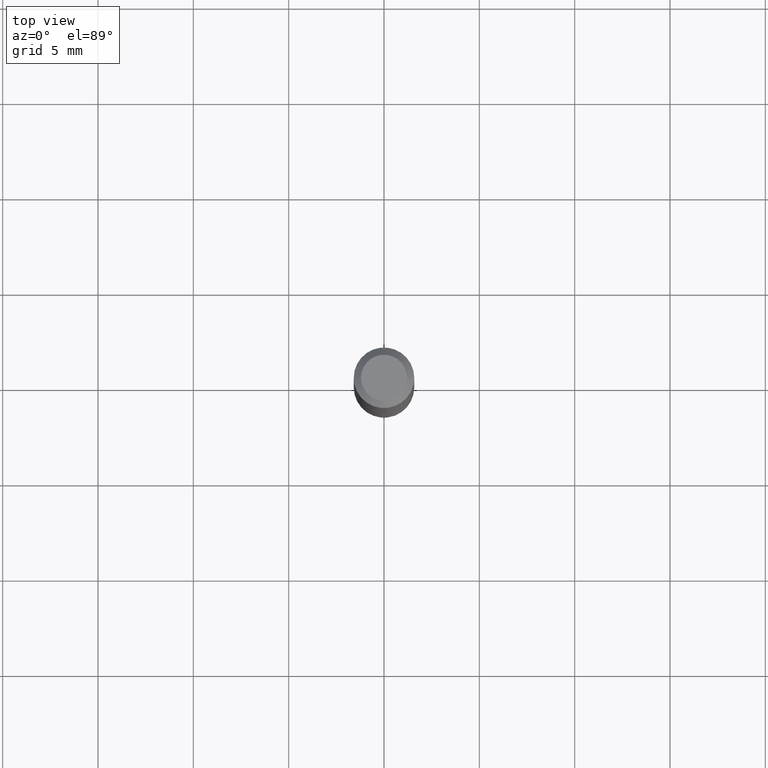
[diagram: clean part render]
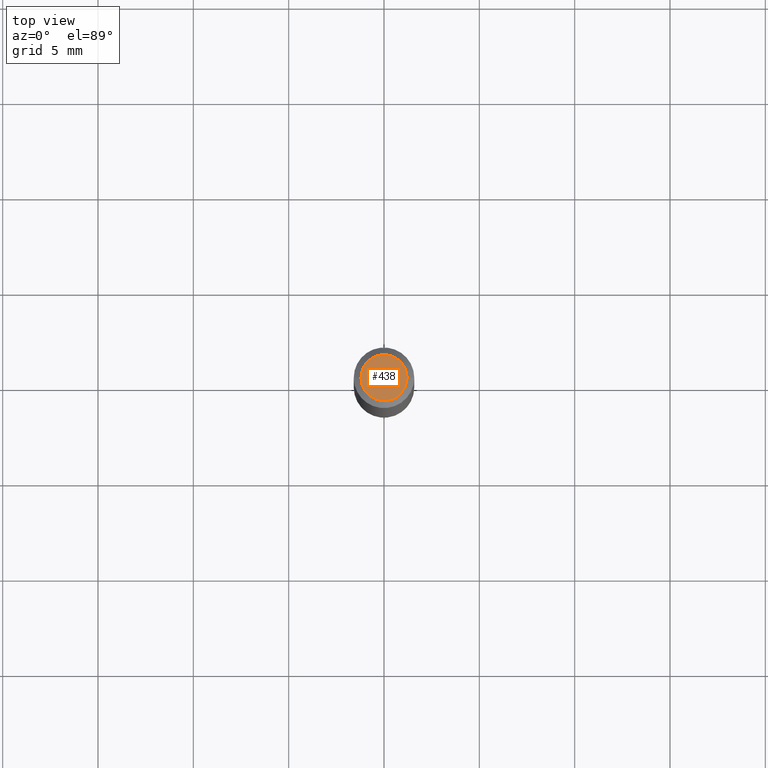
[diagram: same view with one face highlighted and labeled with its STEP entity id]
A machine part, top view. The second image highlights one B-rep face of the part: STEP entity #438.
In plain terms, the highlighted planar face has unit normal (0, -0, -1).
Its self-contained STEP definition (entity closure, byte-faithful):
#22 = ORIENTED_EDGE ( 'NONE', *, *, #393, .T. ) ;
#25 = DIRECTION ( 'NONE',  ( -1.000000000000000000, 6.982962677686265922E-15, -4.876176775795935793E-29 ) ) ;
#36 = AXIS2_PLACEMENT_3D ( 'NONE', #58, #131, #455 ) ;
#58 = CARTESIAN_POINT ( 'NONE',  ( -6.680649051745406845E-45, 9.538196290434862081E-31, 2.731847993664263218E-16 ) ) ;
#72 = DIRECTION ( 'NONE',  ( 2.438088387897960049E-29, -3.491481338843145188E-15, -1.000000000000000000 ) ) ;
#131 = DIRECTION ( 'NONE',  ( -2.445468806185136597E-29, 3.491481338843145583E-15, 1.000000000000000000 ) ) ;
#147 = PLANE ( 'NONE',  #218 ) ;
#154 = AXIS2_PLACEMENT_3D ( 'NONE', #439, #430, #229 ) ;
#218 = AXIS2_PLACEMENT_3D ( 'NONE', #343, #72, #25 ) ;
#229 = DIRECTION ( 'NONE',  ( 1.000000000000000000, -6.982962677686266711E-15, 4.852736867747365086E-29 ) ) ;
#242 = VERTEX_POINT ( 'NONE', #249 ) ;
#249 = CARTESIAN_POINT ( 'NONE',  ( 0.04750000000000000749, -4.035134999187568762E-16, 2.731847993664288856E-16 ) ) ;
#250 = EDGE_CURVE ( 'NONE', #385, #242, #262, .T. ) ;
#262 = CIRCLE ( 'NONE', #36, 0.04750000000000000749 ) ;
#340 = CIRCLE ( 'NONE', #154, 0.04750000000000000749 ) ;
#343 = CARTESIAN_POINT ( 'NONE',  ( 3.316907271900976589E-16, 0.04750000000000000749, -2.925296391183627249E-17 ) ) ;
#351 = EDGE_LOOP ( 'NONE', ( #492, #22 ) ) ;
#385 = VERTEX_POINT ( 'NONE', #473 ) ;
#393 = EDGE_CURVE ( 'NONE', #242, #385, #340, .T. ) ;
#430 = DIRECTION ( 'NONE',  ( -2.445468806185136597E-29, 3.491481338843145583E-15, 1.000000000000000000 ) ) ;
#433 = FACE_OUTER_BOUND ( 'NONE', #351, .T. ) ;
#438 = ADVANCED_FACE ( 'NONE', ( #433 ), #147, .F. ) ;
#439 = CARTESIAN_POINT ( 'NONE',  ( -6.680649051745406845E-45, 9.538196290434862081E-31, 2.731847993664263218E-16 ) ) ;
#455 = DIRECTION ( 'NONE',  ( 1.000000000000000000, -6.982962677686266711E-15, 4.852736867747365086E-29 ) ) ;
#473 = CARTESIAN_POINT ( 'NONE',  ( -0.04750000000000000749, 3.578768372314221353E-16, 2.731847993664239060E-16 ) ) ;
#492 = ORIENTED_EDGE ( 'NONE', *, *, #250, .T. ) ;